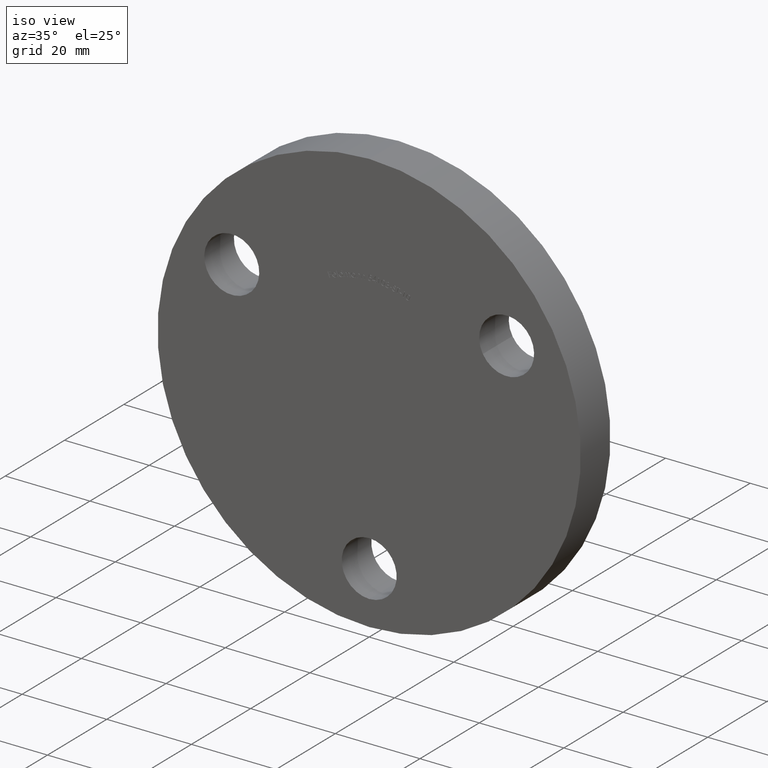
[diagram: clean part render]
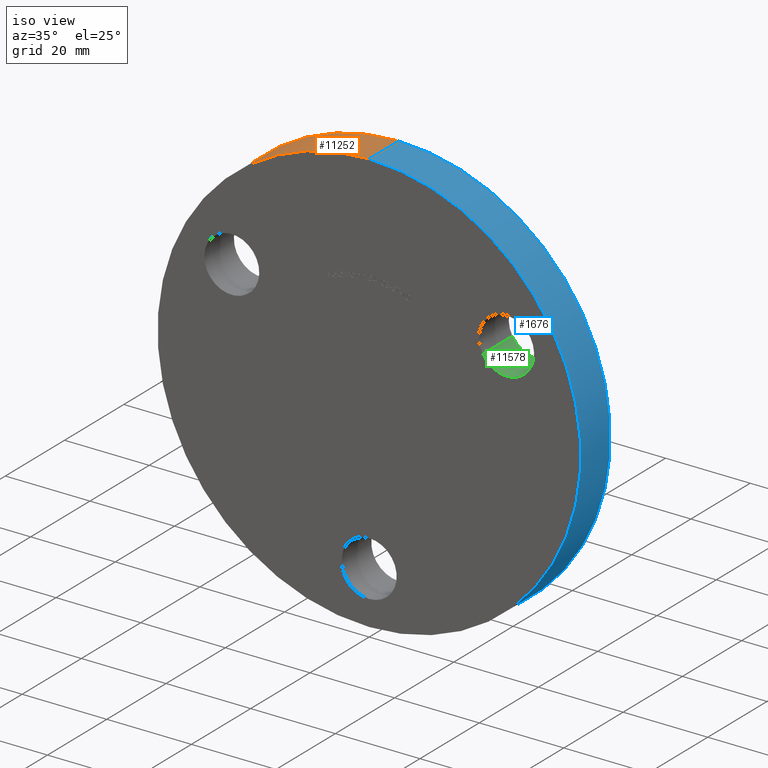
[diagram: same view with three faces highlighted in distinct colors, each labeled with its STEP entity id]
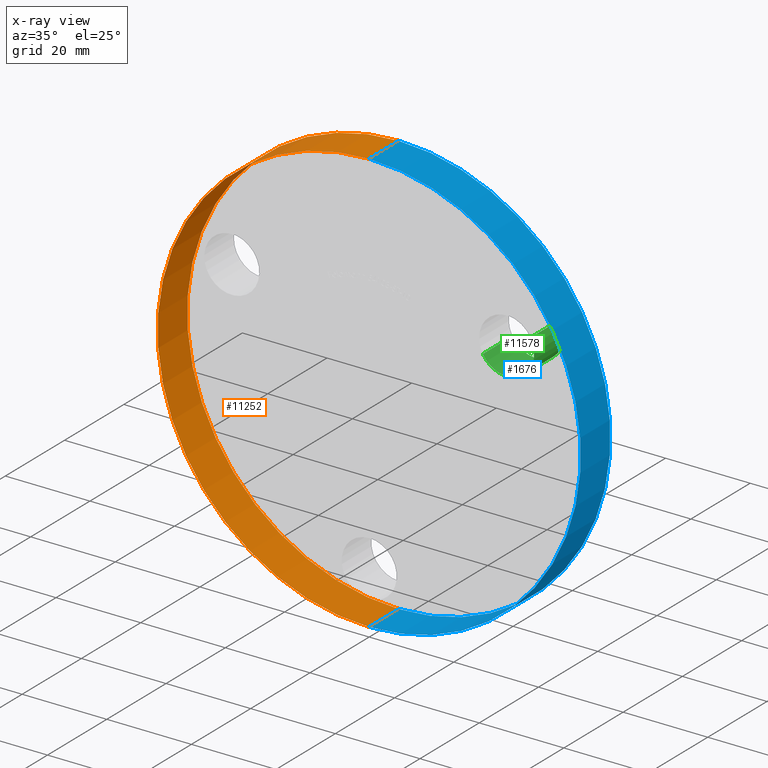
[diagram: x-ray of the same camera — body ghosted, the three highlighted faces saturated]
A machine part, iso view with three faces highlighted in distinct colors.
The next image is the same camera in x-ray (body ghosted, the three faces saturated) — at least one of them is partly hidden behind the body in this view.
Their STEP definitions:

[orange] entity #11252 — the highlighted cylindrical surface (partial cylindrical patch) has radius 50 mm, axis along (-0, -1, -0).
#110 = DIRECTION ( 'NONE',  ( -0.0000000000000000000, -1.000000000000000000, -0.0000000000000000000 ) ) ;
#330 = FACE_OUTER_BOUND ( 'NONE', #3133, .T. ) ;
#1050 = CARTESIAN_POINT ( 'NONE',  ( 6.123233995736766100E-015, 10.00000000000000000, 50.00000000000000000 ) ) ;
#1139 = EDGE_CURVE ( 'NONE', #7769, #6721, #5333, .T. ) ;
#2055 = CARTESIAN_POINT ( 'NONE',  ( 0.0000000000000000000, 10.00000000000000000, -50.00000000000000000 ) ) ;
#2512 = DIRECTION ( 'NONE',  ( 0.0000000000000000000, 0.0000000000000000000, 1.000000000000000000 ) ) ;
#2814 = VERTEX_POINT ( 'NONE', #8372 ) ;
#2916 = CARTESIAN_POINT ( 'NONE',  ( 0.0000000000000000000, 10.00000000000000000, 0.0000000000000000000 ) ) ;
#2923 = AXIS2_PLACEMENT_3D ( 'NONE', #2916, #8825, #9925 ) ;
#3133 = EDGE_LOOP ( 'NONE', ( #6793, #4341, #10492, #4428 ) ) ;
#3405 = CARTESIAN_POINT ( 'NONE',  ( 0.0000000000000000000, 0.0000000000000000000, 0.0000000000000000000 ) ) ;
#3814 = CARTESIAN_POINT ( 'NONE',  ( 0.0000000000000000000, 0.0000000000000000000, -50.00000000000000000 ) ) ;
#4341 = ORIENTED_EDGE ( 'NONE', *, *, #7233, .F. ) ;
#4428 = ORIENTED_EDGE ( 'NONE', *, *, #8616, .T. ) ;
#4982 = AXIS2_PLACEMENT_3D ( 'NONE', #12713, #7569, #6503 ) ;
#5333 = LINE ( 'NONE', #12990, #9296 ) ;
#5665 = CARTESIAN_POINT ( 'NONE',  ( 6.123233995736766100E-015, 10.00000000000000000, 50.00000000000000000 ) ) ;
#6226 = CIRCLE ( 'NONE', #10385, 50.00000000000000000 ) ;
#6503 = DIRECTION ( 'NONE',  ( 0.0000000000000000000, 0.0000000000000000000, -1.000000000000000000 ) ) ;
#6721 = VERTEX_POINT ( 'NONE', #3814 ) ;
#6793 = ORIENTED_EDGE ( 'NONE', *, *, #8065, .F. ) ;
#7233 = EDGE_CURVE ( 'NONE', #7769, #7835, #12763, .T. ) ;
#7569 = DIRECTION ( 'NONE',  ( -0.0000000000000000000, -1.000000000000000000, -0.0000000000000000000 ) ) ;
#7769 = VERTEX_POINT ( 'NONE', #2055 ) ;
#7835 = VERTEX_POINT ( 'NONE', #5665 ) ;
#7974 = LINE ( 'NONE', #1050, #12749 ) ;
#8065 = EDGE_CURVE ( 'NONE', #7835, #2814, #7974, .T. ) ;
#8372 = CARTESIAN_POINT ( 'NONE',  ( 6.123233995736766100E-015, 0.0000000000000000000, 50.00000000000000000 ) ) ;
#8564 = DIRECTION ( 'NONE',  ( 0.0000000000000000000, 1.000000000000000000, 0.0000000000000000000 ) ) ;
#8616 = EDGE_CURVE ( 'NONE', #6721, #2814, #6226, .T. ) ;
#8718 = DIRECTION ( 'NONE',  ( -0.0000000000000000000, -1.000000000000000000, -0.0000000000000000000 ) ) ;
#8825 = DIRECTION ( 'NONE',  ( 0.0000000000000000000, 1.000000000000000000, 0.0000000000000000000 ) ) ;
#9296 = VECTOR ( 'NONE', #8718, 1000.000000000000000 ) ;
#9925 = DIRECTION ( 'NONE',  ( 0.0000000000000000000, 0.0000000000000000000, 1.000000000000000000 ) ) ;
#10385 = AXIS2_PLACEMENT_3D ( 'NONE', #3405, #8564, #2512 ) ;
#10492 = ORIENTED_EDGE ( 'NONE', *, *, #1139, .T. ) ;
#11252 = ADVANCED_FACE ( 'NONE', ( #330 ), #11753, .T. ) ;
#11753 = CYLINDRICAL_SURFACE ( 'NONE', #4982, 50.00000000000000000 ) ;
#12713 = CARTESIAN_POINT ( 'NONE',  ( 0.0000000000000000000, 10.00000000000000000, 0.0000000000000000000 ) ) ;
#12749 = VECTOR ( 'NONE', #110, 1000.000000000000000 ) ;
#12763 = CIRCLE ( 'NONE', #2923, 50.00000000000000000 ) ;
#12990 = CARTESIAN_POINT ( 'NONE',  ( 0.0000000000000000000, 10.00000000000000000, -50.00000000000000000 ) ) ;

[blue] entity #1676 — the highlighted cylindrical surface (partial cylindrical patch) has radius 50 mm, axis along (-0, -1, -0).
#106 = CARTESIAN_POINT ( 'NONE',  ( 0.0000000000000000000, 10.00000000000000000, 0.0000000000000000000 ) ) ;
#110 = DIRECTION ( 'NONE',  ( -0.0000000000000000000, -1.000000000000000000, -0.0000000000000000000 ) ) ;
#223 = AXIS2_PLACEMENT_3D ( 'NONE', #106, #6132, #3100 ) ;
#225 = CARTESIAN_POINT ( 'NONE',  ( 0.0000000000000000000, 0.0000000000000000000, 0.0000000000000000000 ) ) ;
#1050 = CARTESIAN_POINT ( 'NONE',  ( 6.123233995736766100E-015, 10.00000000000000000, 50.00000000000000000 ) ) ;
#1051 = ORIENTED_EDGE ( 'NONE', *, *, #8065, .T. ) ;
#1139 = EDGE_CURVE ( 'NONE', #7769, #6721, #5333, .T. ) ;
#1405 = DIRECTION ( 'NONE',  ( 0.0000000000000000000, 0.0000000000000000000, 1.000000000000000000 ) ) ;
#1676 = ADVANCED_FACE ( 'NONE', ( #2170 ), #10881, .T. ) ;
#2055 = CARTESIAN_POINT ( 'NONE',  ( 0.0000000000000000000, 10.00000000000000000, -50.00000000000000000 ) ) ;
#2170 = FACE_OUTER_BOUND ( 'NONE', #10241, .T. ) ;
#2814 = VERTEX_POINT ( 'NONE', #8372 ) ;
#3100 = DIRECTION ( 'NONE',  ( 0.0000000000000000000, 0.0000000000000000000, 1.000000000000000000 ) ) ;
#3508 = ORIENTED_EDGE ( 'NONE', *, *, #1139, .F. ) ;
#3799 = CIRCLE ( 'NONE', #223, 50.00000000000000000 ) ;
#3814 = CARTESIAN_POINT ( 'NONE',  ( 0.0000000000000000000, 0.0000000000000000000, -50.00000000000000000 ) ) ;
#5333 = LINE ( 'NONE', #12990, #9296 ) ;
#5665 = CARTESIAN_POINT ( 'NONE',  ( 6.123233995736766100E-015, 10.00000000000000000, 50.00000000000000000 ) ) ;
#5788 = AXIS2_PLACEMENT_3D ( 'NONE', #6770, #9799, #10698 ) ;
#6132 = DIRECTION ( 'NONE',  ( 0.0000000000000000000, 1.000000000000000000, 0.0000000000000000000 ) ) ;
#6357 = ORIENTED_EDGE ( 'NONE', *, *, #9575, .T. ) ;
#6721 = VERTEX_POINT ( 'NONE', #3814 ) ;
#6770 = CARTESIAN_POINT ( 'NONE',  ( 0.0000000000000000000, 10.00000000000000000, 0.0000000000000000000 ) ) ;
#7769 = VERTEX_POINT ( 'NONE', #2055 ) ;
#7835 = VERTEX_POINT ( 'NONE', #5665 ) ;
#7974 = LINE ( 'NONE', #1050, #12749 ) ;
#8065 = EDGE_CURVE ( 'NONE', #7835, #2814, #7974, .T. ) ;
#8272 = CIRCLE ( 'NONE', #9869, 50.00000000000000000 ) ;
#8372 = CARTESIAN_POINT ( 'NONE',  ( 6.123233995736766100E-015, 0.0000000000000000000, 50.00000000000000000 ) ) ;
#8718 = DIRECTION ( 'NONE',  ( -0.0000000000000000000, -1.000000000000000000, -0.0000000000000000000 ) ) ;
#9296 = VECTOR ( 'NONE', #8718, 1000.000000000000000 ) ;
#9416 = DIRECTION ( 'NONE',  ( 0.0000000000000000000, 1.000000000000000000, 0.0000000000000000000 ) ) ;
#9575 = EDGE_CURVE ( 'NONE', #2814, #6721, #8272, .T. ) ;
#9799 = DIRECTION ( 'NONE',  ( -0.0000000000000000000, -1.000000000000000000, -0.0000000000000000000 ) ) ;
#9869 = AXIS2_PLACEMENT_3D ( 'NONE', #225, #9416, #1405 ) ;
#10241 = EDGE_LOOP ( 'NONE', ( #11514, #1051, #6357, #3508 ) ) ;
#10698 = DIRECTION ( 'NONE',  ( 0.0000000000000000000, 0.0000000000000000000, -1.000000000000000000 ) ) ;
#10881 = CYLINDRICAL_SURFACE ( 'NONE', #5788, 50.00000000000000000 ) ;
#11514 = ORIENTED_EDGE ( 'NONE', *, *, #12788, .F. ) ;
#12749 = VECTOR ( 'NONE', #110, 1000.000000000000000 ) ;
#12788 = EDGE_CURVE ( 'NONE', #7835, #7769, #3799, .T. ) ;
#12990 = CARTESIAN_POINT ( 'NONE',  ( 0.0000000000000000000, 10.00000000000000000, -50.00000000000000000 ) ) ;

[green] entity #11578 — the highlighted cylindrical surface (edge-blend (fillet) strip) has radius 6.5 mm, axis along (0, 1, 0).
#43 = CARTESIAN_POINT ( 'NONE',  ( 32.47595264191637200, 0.0000000000000000000, 18.75000000000015300 ) ) ;
#877 = DIRECTION ( 'NONE',  ( -0.8660254037844362700, 0.0000000000000000000, -0.5000000000000041100 ) ) ;
#991 = ORIENTED_EDGE ( 'NONE', *, *, #11361, .T. ) ;
#1990 = VERTEX_POINT ( 'NONE', #11242 ) ;
#2076 = VERTEX_POINT ( 'NONE', #8521 ) ;
#2670 = DIRECTION ( 'NONE',  ( 0.0000000000000000000, 1.000000000000000000, 0.0000000000000000000 ) ) ;
#2974 = DIRECTION ( 'NONE',  ( 0.0000000000000000000, 1.000000000000000000, 0.0000000000000000000 ) ) ;
#2980 = DIRECTION ( 'NONE',  ( 0.0000000000000000000, 1.000000000000000000, 0.0000000000000000000 ) ) ;
#3084 = DIRECTION ( 'NONE',  ( 0.0000000000000000000, 1.000000000000000000, 0.0000000000000000000 ) ) ;
#3446 = EDGE_CURVE ( 'NONE', #6459, #8118, #9920, .T. ) ;
#3975 = DIRECTION ( 'NONE',  ( -0.8660254037844362700, 0.0000000000000000000, -0.5000000000000041100 ) ) ;
#3999 = EDGE_CURVE ( 'NONE', #2076, #1990, #9436, .T. ) ;
#4073 = CARTESIAN_POINT ( 'NONE',  ( 32.47595264191637200, 10.00000000000000000, 18.75000000000015300 ) ) ;
#4418 = ORIENTED_EDGE ( 'NONE', *, *, #3446, .F. ) ;
#4453 = CYLINDRICAL_SURFACE ( 'NONE', #11613, 6.500000000000000900 ) ;
#4642 = CARTESIAN_POINT ( 'NONE',  ( 38.10511776651520700, 0.0000000000000000000, 22.00000000000017800 ) ) ;
#4890 = AXIS2_PLACEMENT_3D ( 'NONE', #43, #3084, #5276 ) ;
#5276 = DIRECTION ( 'NONE',  ( -0.8660254037844362700, 0.0000000000000000000, -0.5000000000000041100 ) ) ;
#6459 = VERTEX_POINT ( 'NONE', #12677 ) ;
#6680 = DIRECTION ( 'NONE',  ( 0.0000000000000000000, 1.000000000000000000, 0.0000000000000000000 ) ) ;
#6983 = FACE_OUTER_BOUND ( 'NONE', #11733, .T. ) ;
#7249 = VECTOR ( 'NONE', #2670, 1000.000000000000000 ) ;
#7488 = CIRCLE ( 'NONE', #4890, 6.500000000000000900 ) ;
#7551 = ORIENTED_EDGE ( 'NONE', *, *, #9738, .F. ) ;
#8118 = VERTEX_POINT ( 'NONE', #8603 ) ;
#8194 = VECTOR ( 'NONE', #6680, 1000.000000000000000 ) ;
#8412 = CIRCLE ( 'NONE', #11363, 6.500000000000000900 ) ;
#8521 = CARTESIAN_POINT ( 'NONE',  ( 38.10511776651520700, 0.0000000000000000000, 22.00000000000017800 ) ) ;
#8603 = CARTESIAN_POINT ( 'NONE',  ( 26.84678751731753400, 10.00000000000000000, 15.50000000000012400 ) ) ;
#9388 = CARTESIAN_POINT ( 'NONE',  ( 26.84678751731753400, 0.0000000000000000000, 15.50000000000012400 ) ) ;
#9436 = LINE ( 'NONE', #4642, #8194 ) ;
#9738 = EDGE_CURVE ( 'NONE', #2076, #6459, #7488, .T. ) ;
#9920 = LINE ( 'NONE', #9388, #7249 ) ;
#11242 = CARTESIAN_POINT ( 'NONE',  ( 38.10511776651520700, 10.00000000000000000, 22.00000000000017800 ) ) ;
#11361 = EDGE_CURVE ( 'NONE', #1990, #8118, #8412, .T. ) ;
#11363 = AXIS2_PLACEMENT_3D ( 'NONE', #4073, #2974, #3975 ) ;
#11489 = ORIENTED_EDGE ( 'NONE', *, *, #3999, .T. ) ;
#11578 = ADVANCED_FACE ( 'NONE', ( #6983 ), #4453, .F. ) ;
#11613 = AXIS2_PLACEMENT_3D ( 'NONE', #12179, #2980, #877 ) ;
#11733 = EDGE_LOOP ( 'NONE', ( #7551, #11489, #991, #4418 ) ) ;
#12179 = CARTESIAN_POINT ( 'NONE',  ( 32.47595264191637200, 0.0000000000000000000, 18.75000000000015300 ) ) ;
#12677 = CARTESIAN_POINT ( 'NONE',  ( 26.84678751731753400, 0.0000000000000000000, 15.50000000000012400 ) ) ;